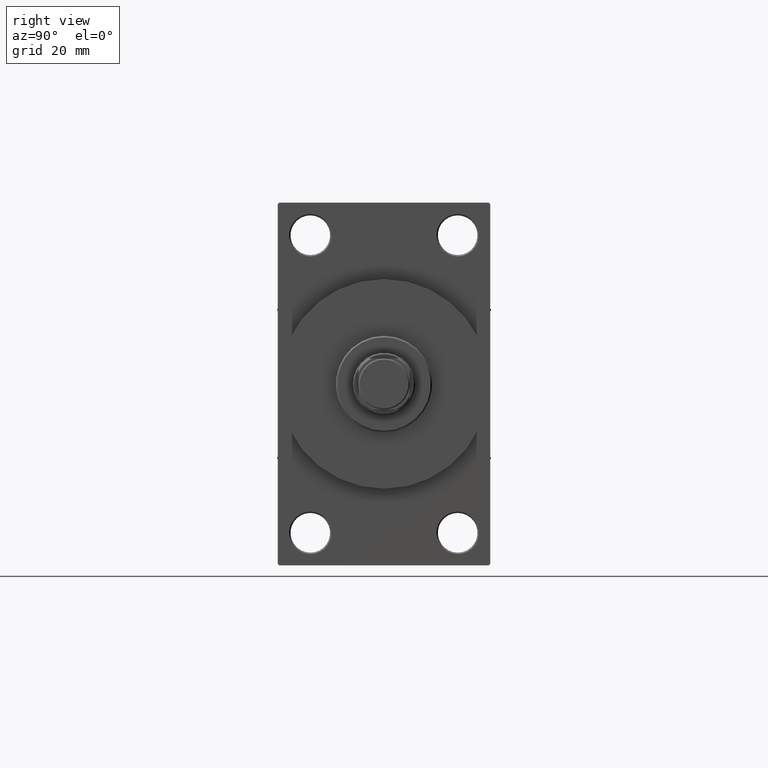
[diagram: clean part render]
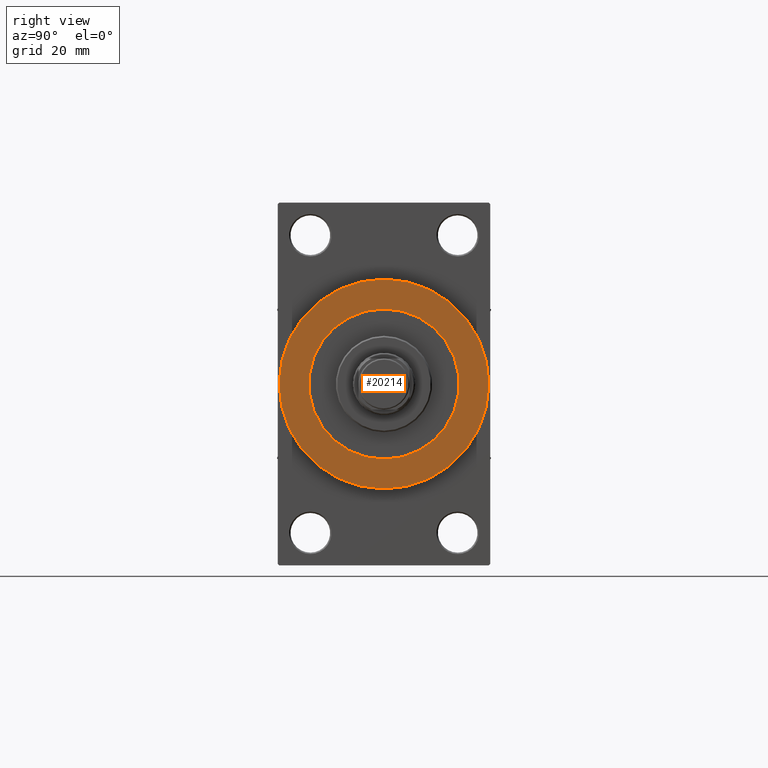
[diagram: same view with one face highlighted and labeled with its STEP entity id]
A machine part, right view. The second image highlights one B-rep face of the part: STEP entity #20214.
In plain terms, the highlighted planar face has unit normal (1, 0, 0).
Its self-contained STEP definition (entity closure, byte-faithful):
#982 = CIRCLE ( 'NONE', #46428, 37.00000000000000000 ) ;
#2622 = EDGE_CURVE ( 'NONE', #27935, #43017, #36077, .T. ) ;
#3893 = DIRECTION ( 'NONE',  ( 1.000000000000000000, 0.000000000000000000, 0.000000000000000000 ) ) ;
#4078 = CARTESIAN_POINT ( 'NONE',  ( 154.0000000000000284, 0.000000000000000000, 0.000000000000000000 ) ) ;
#4223 = DIRECTION ( 'NONE',  ( 1.000000000000000000, 0.000000000000000000, 0.000000000000000000 ) ) ;
#5662 = AXIS2_PLACEMENT_3D ( 'NONE', #11696, #7845, #15542 ) ;
#6750 = DIRECTION ( 'NONE',  ( 1.000000000000000000, 0.000000000000000000, 0.000000000000000000 ) ) ;
#7758 = VERTEX_POINT ( 'NONE', #25162 ) ;
#7845 = DIRECTION ( 'NONE',  ( 1.000000000000000000, 0.000000000000000000, 0.000000000000000000 ) ) ;
#8986 = CARTESIAN_POINT ( 'NONE',  ( 154.0000000000000284, 0.000000000000000000, 0.000000000000000000 ) ) ;
#9740 = CARTESIAN_POINT ( 'NONE',  ( 154.0000000000000284, 3.245314017740486554E-15, 26.50000000000000355 ) ) ;
#11152 = VERTEX_POINT ( 'NONE', #9740 ) ;
#11696 = CARTESIAN_POINT ( 'NONE',  ( 154.0000000000000284, 0.000000000000000000, 0.000000000000000000 ) ) ;
#14815 = ORIENTED_EDGE ( 'NONE', *, *, #25164, .F. ) ;
#15542 = DIRECTION ( 'NONE',  ( 0.000000000000000000, 0.000000000000000000, -1.000000000000000000 ) ) ;
#16210 = DIRECTION ( 'NONE',  ( 1.000000000000000000, 0.000000000000000000, 0.000000000000000000 ) ) ;
#17444 = ORIENTED_EDGE ( 'NONE', *, *, #44817, .T. ) ;
#18861 = AXIS2_PLACEMENT_3D ( 'NONE', #40514, #3893, #22456 ) ;
#20214 = ADVANCED_FACE ( 'NONE', ( #47613, #39439 ), #39675, .T. ) ;
#21776 = CARTESIAN_POINT ( 'NONE',  ( 154.0000000000000284, 4.531193156845206793E-15, -37.00000000000000000 ) ) ;
#22319 = DIRECTION ( 'NONE',  ( 0.000000000000000000, 0.000000000000000000, -1.000000000000000000 ) ) ;
#22456 = DIRECTION ( 'NONE',  ( 0.000000000000000000, 0.000000000000000000, -1.000000000000000000 ) ) ;
#23253 = DIRECTION ( 'NONE',  ( 0.000000000000000000, 0.000000000000000000, -1.000000000000000000 ) ) ;
#24861 = EDGE_CURVE ( 'NONE', #7758, #11152, #28122, .T. ) ;
#25162 = CARTESIAN_POINT ( 'NONE',  ( 154.0000000000000284, 0.000000000000000000, -26.50000000000000355 ) ) ;
#25164 = EDGE_CURVE ( 'NONE', #11152, #7758, #47052, .T. ) ;
#27568 = EDGE_LOOP ( 'NONE', ( #32650, #14815 ) ) ;
#27935 = VERTEX_POINT ( 'NONE', #29787 ) ;
#28122 = CIRCLE ( 'NONE', #18861, 26.50000000000000355 ) ;
#29787 = CARTESIAN_POINT ( 'NONE',  ( 154.0000000000000284, 0.000000000000000000, 37.00000000000000000 ) ) ;
#30745 = EDGE_LOOP ( 'NONE', ( #45251, #17444 ) ) ;
#32650 = ORIENTED_EDGE ( 'NONE', *, *, #24861, .F. ) ;
#36077 = CIRCLE ( 'NONE', #42233, 37.00000000000000000 ) ;
#37242 = CARTESIAN_POINT ( 'NONE',  ( 154.0000000000000284, 0.000000000000000000, 0.000000000000000000 ) ) ;
#39439 = FACE_OUTER_BOUND ( 'NONE', #30745, .T. ) ;
#39675 = PLANE ( 'NONE',  #5662 ) ;
#40514 = CARTESIAN_POINT ( 'NONE',  ( 154.0000000000000284, 0.000000000000000000, 0.000000000000000000 ) ) ;
#42233 = AXIS2_PLACEMENT_3D ( 'NONE', #37242, #4223, #23253 ) ;
#42418 = AXIS2_PLACEMENT_3D ( 'NONE', #4078, #6750, #47019 ) ;
#43017 = VERTEX_POINT ( 'NONE', #21776 ) ;
#44817 = EDGE_CURVE ( 'NONE', #43017, #27935, #982, .T. ) ;
#45251 = ORIENTED_EDGE ( 'NONE', *, *, #2622, .T. ) ;
#46428 = AXIS2_PLACEMENT_3D ( 'NONE', #8986, #16210, #22319 ) ;
#47019 = DIRECTION ( 'NONE',  ( 0.000000000000000000, 0.000000000000000000, -1.000000000000000000 ) ) ;
#47052 = CIRCLE ( 'NONE', #42418, 26.50000000000000355 ) ;
#47613 = FACE_BOUND ( 'NONE', #27568, .T. ) ;